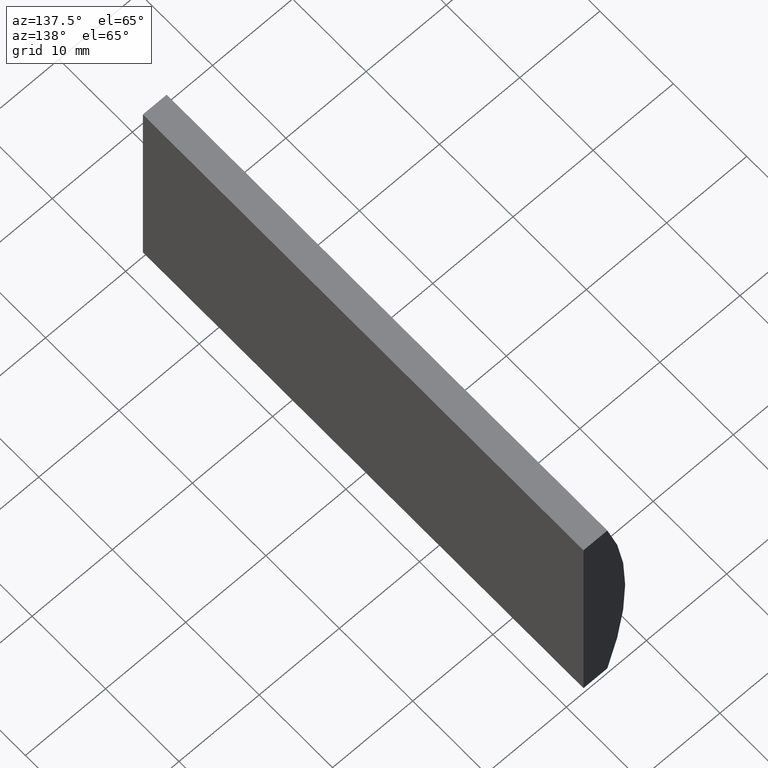
[diagram: clean part render]
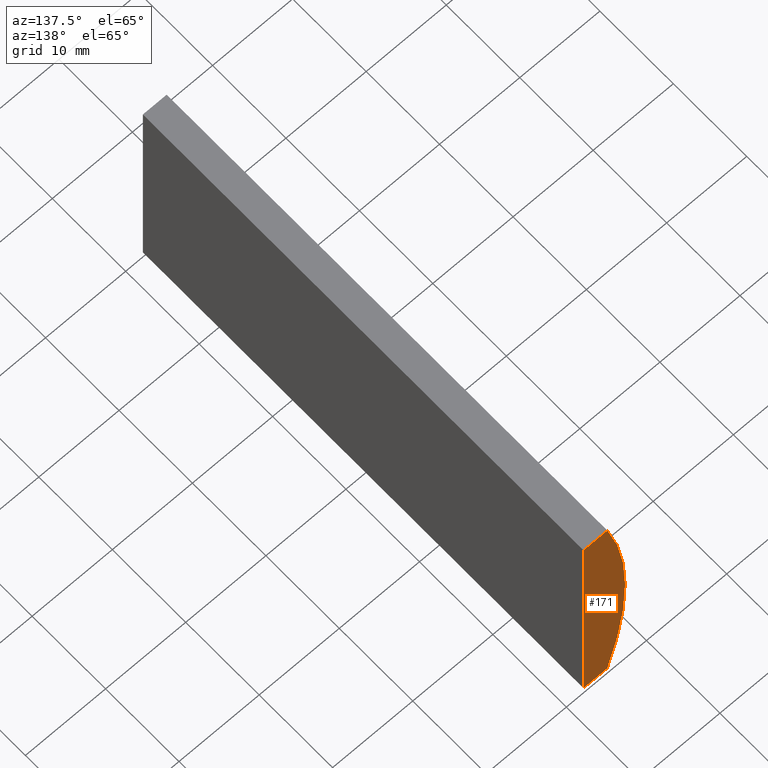
[diagram: same view with one face highlighted and labeled with its STEP entity id]
A machine part, auxiliary view. The second image highlights one B-rep face of the part: STEP entity #171.
In plain terms, the highlighted planar face has unit normal (0, 1, 0).
Its self-contained STEP definition (entity closure, byte-faithful):
#12 = AXIS2_PLACEMENT_3D ( 'NONE', #68, #102, #48 ) ;
#17 = DIRECTION ( 'NONE',  ( 1.000000000000000000, 0.0000000000000000000, 0.0000000000000000000 ) ) ;
#18 = CARTESIAN_POINT ( 'NONE',  ( -42.14479566514874200, 60.00000000000000000, 15.00000000000000000 ) ) ;
#24 = EDGE_CURVE ( 'NONE', #194, #37, #166, .T. ) ;
#37 = VERTEX_POINT ( 'NONE', #97 ) ;
#39 = EDGE_CURVE ( 'NONE', #203, #160, #143, .T. ) ;
#44 = EDGE_CURVE ( 'NONE', #160, #194, #89, .T. ) ;
#48 = DIRECTION ( 'NONE',  ( 0.0000000000000000000, 0.0000000000000000000, 1.000000000000000000 ) ) ;
#49 = ORIENTED_EDGE ( 'NONE', *, *, #24, .T. ) ;
#51 = ORIENTED_EDGE ( 'NONE', *, *, #44, .T. ) ;
#55 = VECTOR ( 'NONE', #175, 1000.000000000000000 ) ;
#56 = CARTESIAN_POINT ( 'NONE',  ( -45.12095153845805100, 60.00000000000000000, 15.00000000000000000 ) ) ;
#66 = PLANE ( 'NONE',  #170 ) ;
#68 = CARTESIAN_POINT ( 'NONE',  ( 4.355204334851265500, 60.00000000000000000, 4.286263797015675000E-017 ) ) ;
#70 = CARTESIAN_POINT ( 'NONE',  ( -42.14479566514874900, 60.00000000000000000, -14.99999999999998200 ) ) ;
#73 = CIRCLE ( 'NONE', #12, 51.69999999999999600 ) ;
#75 = EDGE_CURVE ( 'NONE', #37, #203, #73, .T. ) ;
#89 = LINE ( 'NONE', #70, #112 ) ;
#91 = VECTOR ( 'NONE', #17, 1000.000000000000000 ) ;
#96 = ORIENTED_EDGE ( 'NONE', *, *, #39, .T. ) ;
#97 = CARTESIAN_POINT ( 'NONE',  ( -45.12095153845805100, 60.00000000000000000, -15.00000000000000000 ) ) ;
#102 = DIRECTION ( 'NONE',  ( 0.0000000000000000000, 1.000000000000000000, 0.0000000000000000000 ) ) ;
#108 = DIRECTION ( 'NONE',  ( 0.0000000000000000000, 1.000000000000000000, 0.0000000000000000000 ) ) ;
#112 = VECTOR ( 'NONE', #141, 1000.000000000000000 ) ;
#118 = CARTESIAN_POINT ( 'NONE',  ( 4.355204334851265500, 60.00000000000000000, 4.286263797015675000E-017 ) ) ;
#139 = CARTESIAN_POINT ( 'NONE',  ( -45.12095153845805100, 60.00000000000000000, -15.00000000000000000 ) ) ;
#141 = DIRECTION ( 'NONE',  ( -2.312964634635744400E-016, -0.0000000000000000000, -1.000000000000000000 ) ) ;
#143 = LINE ( 'NONE', #56, #91 ) ;
#155 = EDGE_LOOP ( 'NONE', ( #173, #96, #51, #49 ) ) ;
#160 = VERTEX_POINT ( 'NONE', #18 ) ;
#166 = LINE ( 'NONE', #139, #55 ) ;
#170 = AXIS2_PLACEMENT_3D ( 'NONE', #118, #108, #193 ) ;
#171 = ADVANCED_FACE ( 'NONE', ( #179 ), #66, .T. ) ;
#173 = ORIENTED_EDGE ( 'NONE', *, *, #75, .T. ) ;
#175 = DIRECTION ( 'NONE',  ( -1.000000000000000000, -0.0000000000000000000, -5.828738647508747700E-015 ) ) ;
#179 = FACE_OUTER_BOUND ( 'NONE', #155, .T. ) ;
#186 = CARTESIAN_POINT ( 'NONE',  ( -45.12095153845805100, 60.00000000000000000, 15.00000000000000000 ) ) ;
#189 = CARTESIAN_POINT ( 'NONE',  ( -42.14479566514874900, 60.00000000000000000, -14.99999999999998200 ) ) ;
#193 = DIRECTION ( 'NONE',  ( 0.0000000000000000000, -0.0000000000000000000, 1.000000000000000000 ) ) ;
#194 = VERTEX_POINT ( 'NONE', #189 ) ;
#203 = VERTEX_POINT ( 'NONE', #186 ) ;